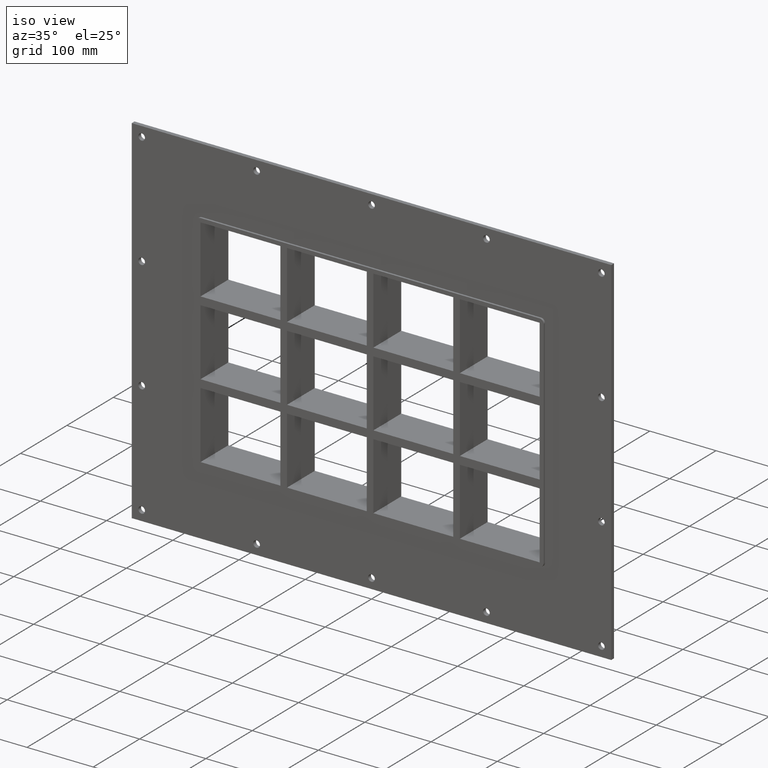
[diagram: clean part render]
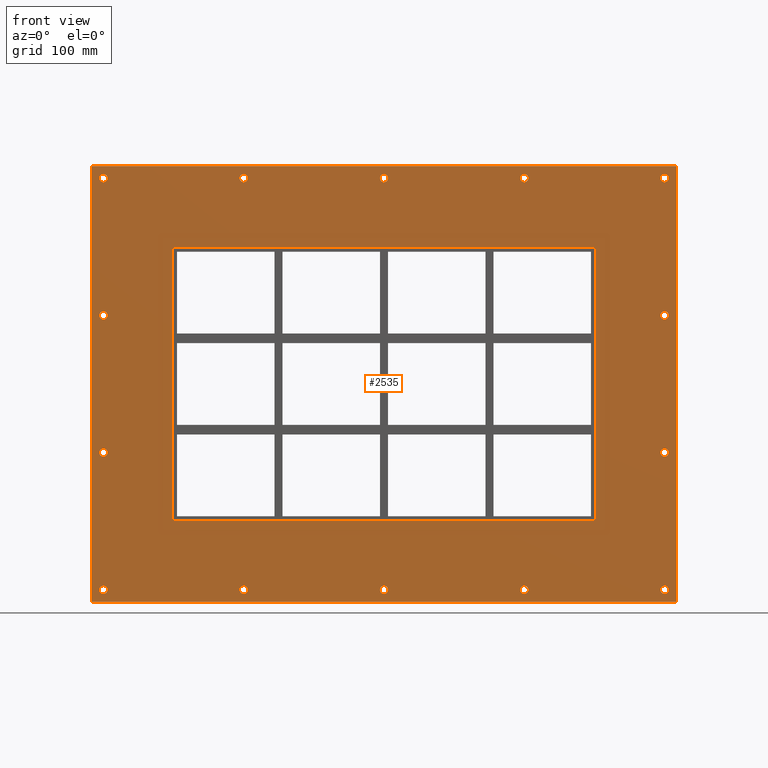
[diagram: tour spotlight — one face highlighted and labeled with its STEP entity id]
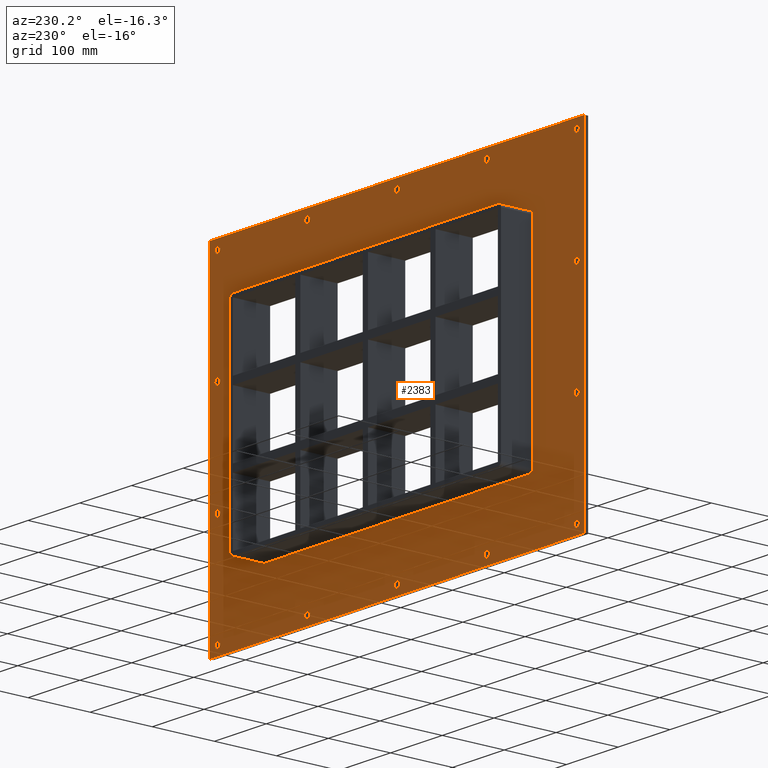
[diagram: tour spotlight — one face highlighted and labeled with its STEP entity id]
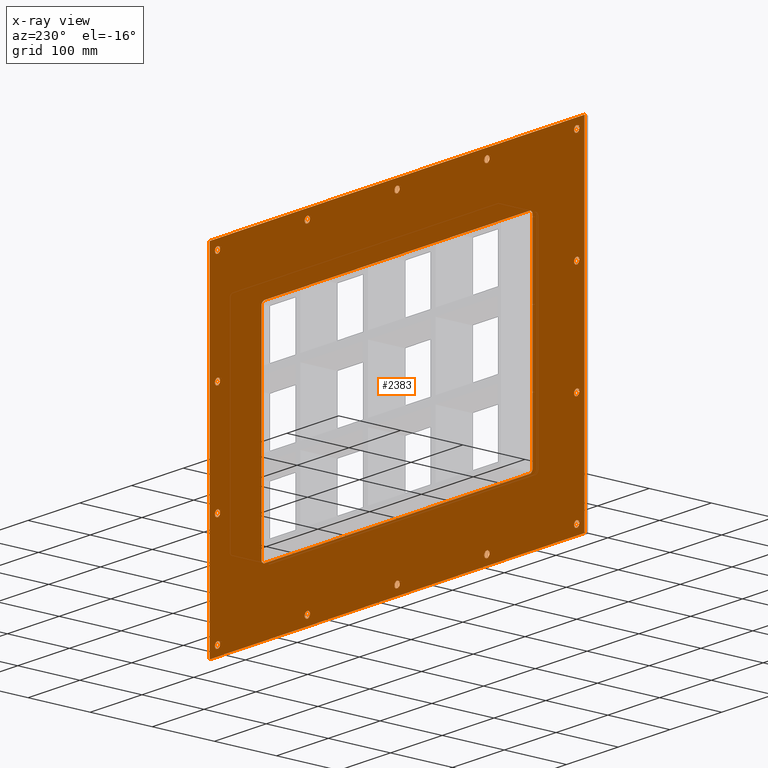
[diagram: x-ray of the same camera — body ghosted, this tour face saturated]
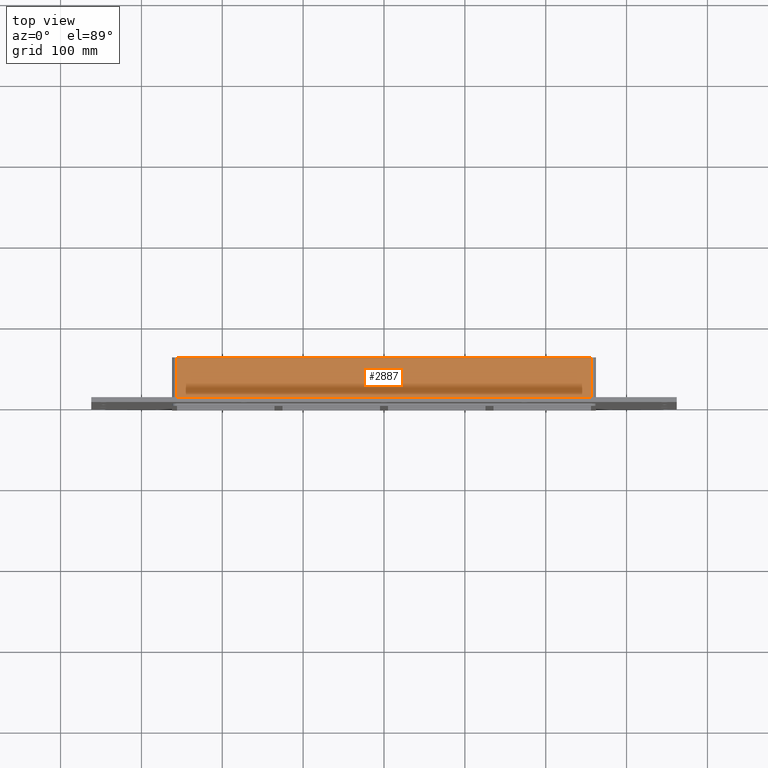
[diagram: tour spotlight — one face highlighted and labeled with its STEP entity id]
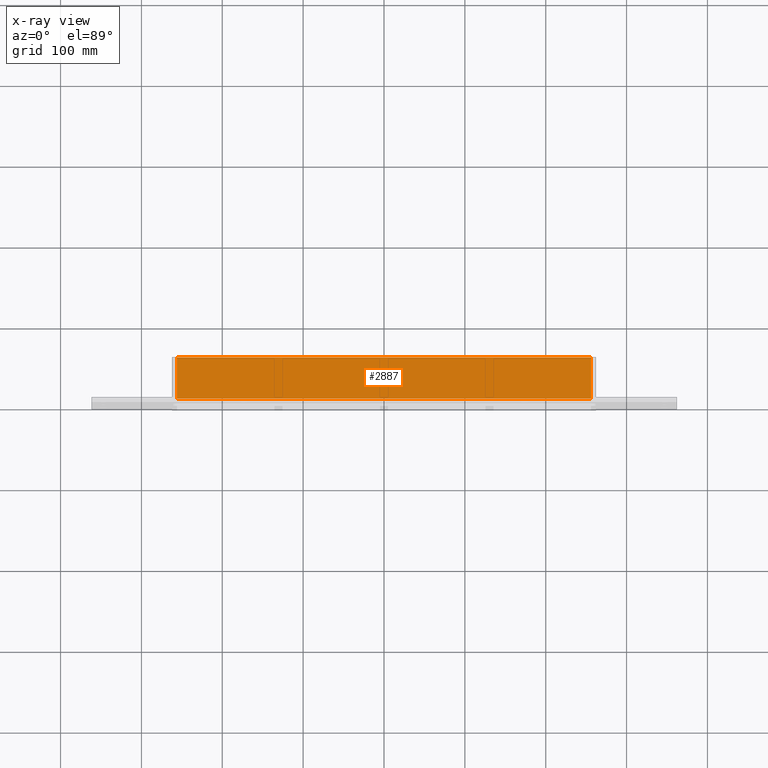
[diagram: x-ray of the same camera — body ghosted, this tour face saturated]
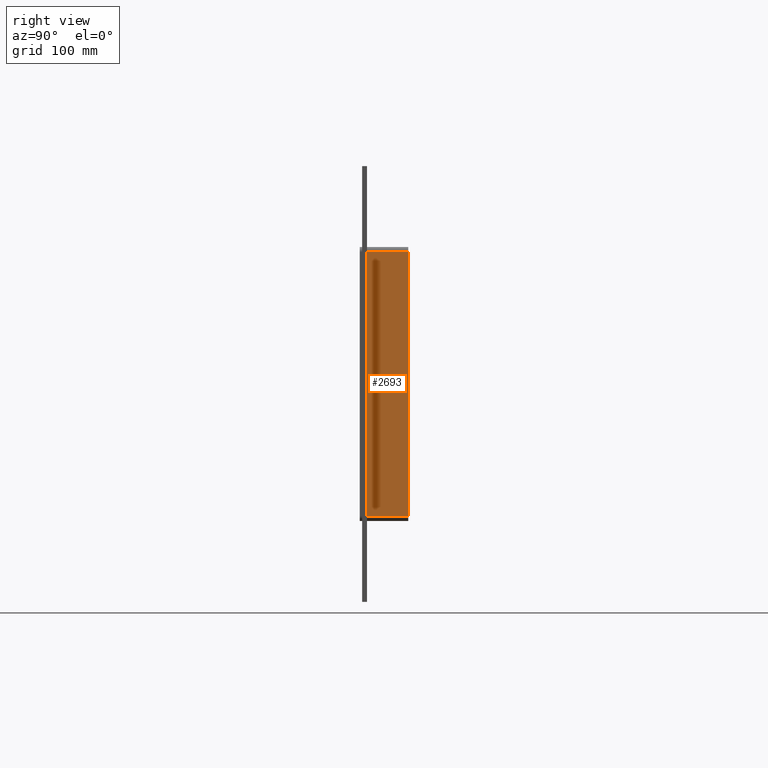
[diagram: tour spotlight — one face highlighted and labeled with its STEP entity id]
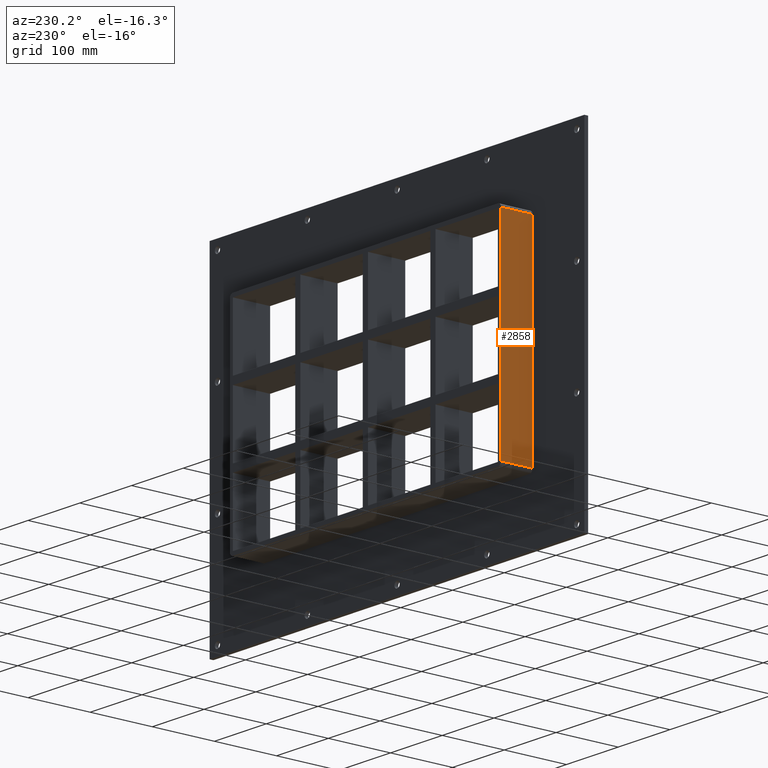
[diagram: tour spotlight — one face highlighted and labeled with its STEP entity id]
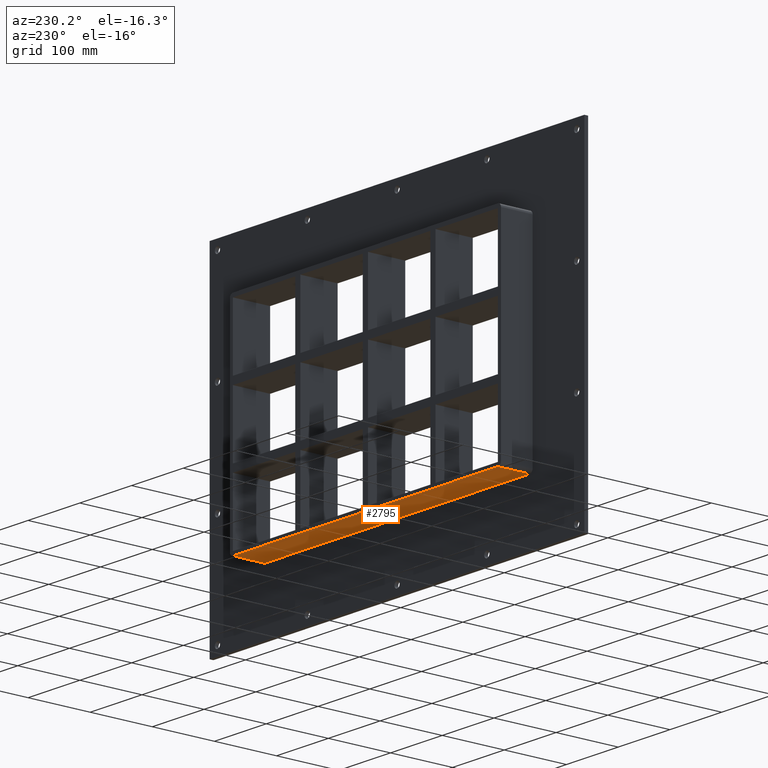
[diagram: tour spotlight — one face highlighted and labeled with its STEP entity id]
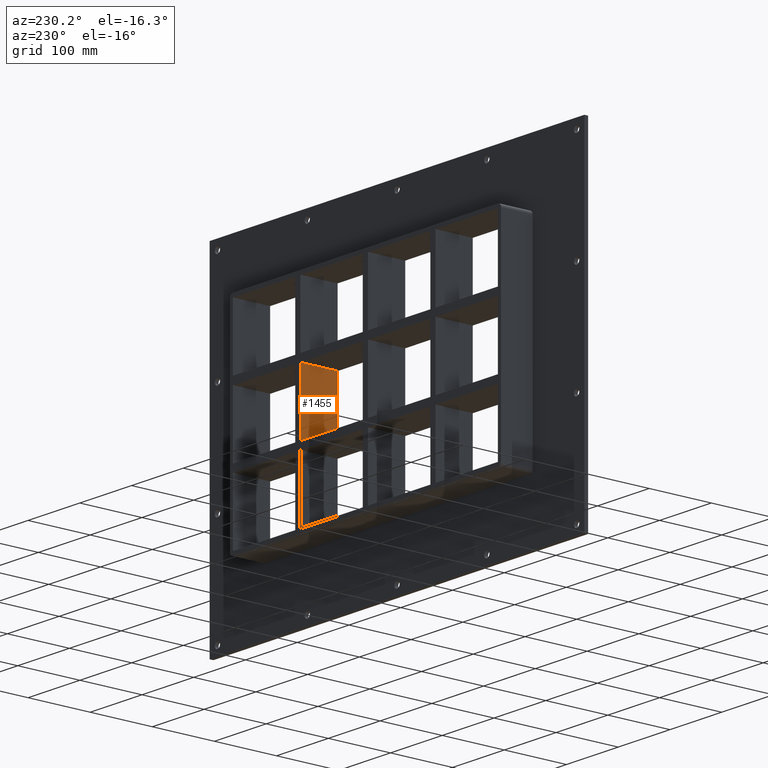
[diagram: tour spotlight — one face highlighted and labeled with its STEP entity id]
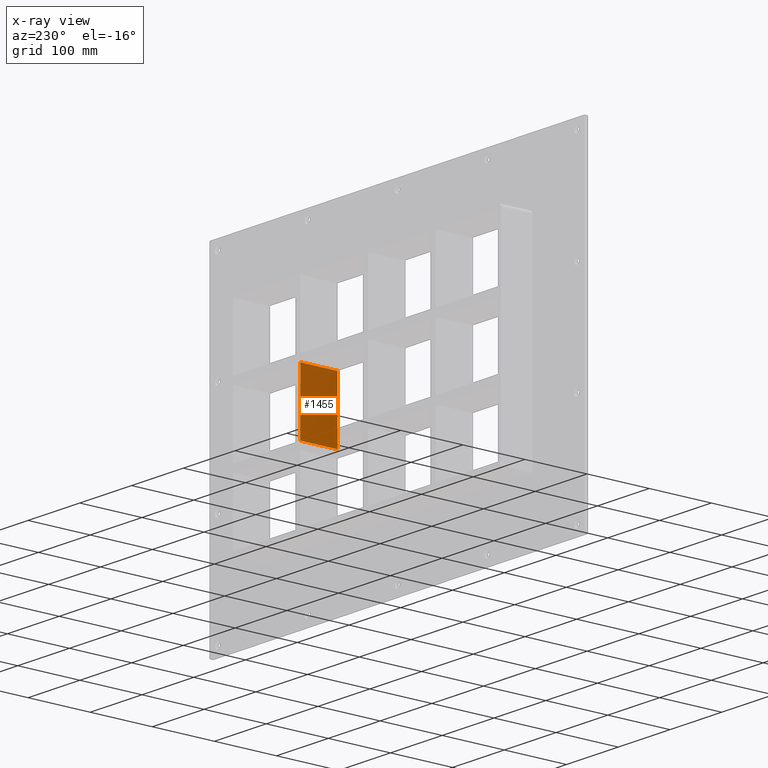
[diagram: x-ray of the same camera — body ghosted, this tour face saturated]
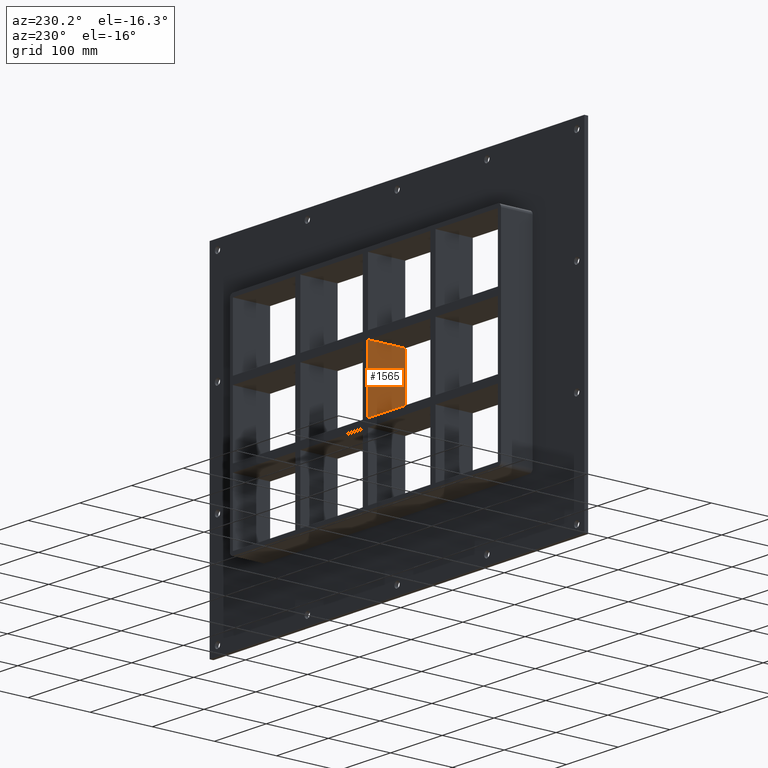
[diagram: tour spotlight — one face highlighted and labeled with its STEP entity id]
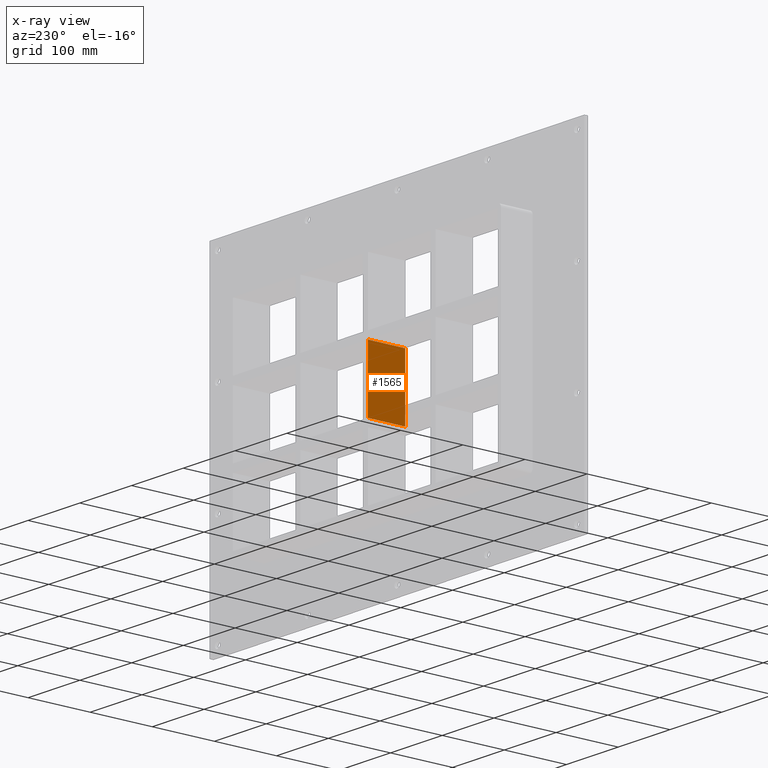
[diagram: x-ray of the same camera — body ghosted, this tour face saturated]
A machine part: a face-by-face anatomy tour. The part has 86 B-rep faces; the first image is the clean iso view, then the 8 largest visible faces are spotlighted one at a time (largest first), each with its STEP entity span.

Face 1 — front view, entity #2535. In plain terms, the highlighted planar face has unit normal (0, 1, 0).
Definition (entity closure, byte-faithful):
#84=CARTESIAN_POINT('',(-342.00000000000011,0.0,-254.49999999999991));
#85=VERTEX_POINT('',#84);
#86=CARTESIAN_POINT('',(-347.00000000000011,0.0,-254.49999999999991));
#87=DIRECTION('',(0.0,1.0,0.0));
#88=DIRECTION('',(1.0,0.0,0.0));
#89=AXIS2_PLACEMENT_3D('',#86,#87,#88);
#90=CIRCLE('',#89,5.0);
#91=EDGE_CURVE('',#85,#85,#90,.T.);
#112=CARTESIAN_POINT('',(351.99999999999994,0.0,-84.799999999999926));
#113=VERTEX_POINT('',#112);
#114=CARTESIAN_POINT('',(346.99999999999994,0.0,-84.799999999999926));
#115=DIRECTION('',(0.0,1.0,0.0));
#116=DIRECTION('',(1.0,0.0,0.0));
#117=AXIS2_PLACEMENT_3D('',#114,#115,#116);
#118=CIRCLE('',#117,5.0);
#119=EDGE_CURVE('',#113,#113,#118,.T.);
#140=CARTESIAN_POINT('',(-342.00000000000011,0.0,-84.799999999999926));
#141=VERTEX_POINT('',#140);
#142=CARTESIAN_POINT('',(-347.00000000000011,0.0,-84.799999999999926));
#143=DIRECTION('',(0.0,1.0,0.0));
#144=DIRECTION('',(1.0,0.0,0.0));
#145=AXIS2_PLACEMENT_3D('',#142,#143,#144);
#146=CIRCLE('',#145,5.0);
#147=EDGE_CURVE('',#141,#141,#146,.T.);
#168=CARTESIAN_POINT('',(351.99999999999994,0.0,84.900000000000063));
#169=VERTEX_POINT('',#168);
#170=CARTESIAN_POINT('',(346.99999999999994,0.0,84.900000000000063));
#171=DIRECTION('',(0.0,1.0,0.0));
#172=DIRECTION('',(1.0,0.0,0.0));
#173=AXIS2_PLACEMENT_3D('',#170,#171,#172);
#174=CIRCLE('',#173,5.0);
#175=EDGE_CURVE('',#169,#169,#174,.T.);
#196=CARTESIAN_POINT('',(-342.00000000000011,0.0,84.900000000000063));
#197=VERTEX_POINT('',#196);
#198=CARTESIAN_POINT('',(-347.00000000000011,0.0,84.900000000000063));
#199=DIRECTION('',(0.0,1.0,0.0));
#200=DIRECTION('',(1.0,0.0,0.0));
#201=AXIS2_PLACEMENT_3D('',#198,#199,#200);
#202=CIRCLE('',#201,5.0);
#203=EDGE_CURVE('',#197,#197,#202,.T.);
#224=CARTESIAN_POINT('',(-168.50000000000009,0.0,254.60000000000005));
#225=VERTEX_POINT('',#224);
#226=CARTESIAN_POINT('',(-173.50000000000009,0.0,254.60000000000005));
#227=DIRECTION('',(0.0,1.0,0.0));
#228=DIRECTION('',(1.0,0.0,0.0));
#229=AXIS2_PLACEMENT_3D('',#226,#227,#228);
#230=CIRCLE('',#229,5.0);
#231=EDGE_CURVE('',#225,#225,#230,.T.);
#252=CARTESIAN_POINT('',(-168.50000000000009,0.0,-254.49999999999991));
#253=VERTEX_POINT('',#252);
#254=CARTESIAN_POINT('',(-173.50000000000009,0.0,-254.49999999999991));
#255=DIRECTION('',(0.0,1.0,0.0));
#256=DIRECTION('',(1.0,0.0,0.0));
#257=AXIS2_PLACEMENT_3D('',#254,#255,#256);
#258=CIRCLE('',#257,5.0);
#259=EDGE_CURVE('',#253,#253,#258,.T.);
#280=CARTESIAN_POINT('',(4.999999999999929,0.0,254.60000000000005));
#281=VERTEX_POINT('',#280);
#282=CARTESIAN_POINT('',(-7.105427E-014,0.0,254.60000000000005));
#283=DIRECTION('',(0.0,1.0,0.0));
#284=DIRECTION('',(1.0,0.0,0.0));
#285=AXIS2_PLACEMENT_3D('',#282,#283,#284);
#286=CIRCLE('',#285,5.0);
#287=EDGE_CURVE('',#281,#281,#286,.T.);
#308=CARTESIAN_POINT('',(4.999999999999929,0.0,-254.49999999999991));
#309=VERTEX_POINT('',#308);
#310=CARTESIAN_POINT('',(-7.105427E-014,0.0,-254.49999999999991));
#311=DIRECTION('',(0.0,1.0,0.0));
#312=DIRECTION('',(1.0,0.0,0.0));
#313=AXIS2_PLACEMENT_3D('',#310,#311,#312);
#314=CIRCLE('',#313,5.0);
#315=EDGE_CURVE('',#309,#309,#314,.T.);
#336=CARTESIAN_POINT('',(178.49999999999994,0.0,254.60000000000005));
#337=VERTEX_POINT('',#336);
#338=CARTESIAN_POINT('',(173.49999999999994,0.0,254.60000000000005));
#339=DIRECTION('',(0.0,1.0,0.0));
#340=DIRECTION('',(1.0,0.0,0.0));
#341=AXIS2_PLACEMENT_3D('',#338,#339,#340);
#342=CIRCLE('',#341,5.0);
#343=EDGE_CURVE('',#337,#337,#342,.T.);
#364=CARTESIAN_POINT('',(178.49999999999994,0.0,-254.49999999999991));
#365=VERTEX_POINT('',#364);
#366=CARTESIAN_POINT('',(173.49999999999994,0.0,-254.49999999999991));
#367=DIRECTION('',(0.0,1.0,0.0));
#368=DIRECTION('',(1.0,0.0,0.0));
#369=AXIS2_PLACEMENT_3D('',#366,#367,#368);
#370=CIRCLE('',#369,5.0);
#371=EDGE_CURVE('',#365,#365,#370,.T.);
#392=CARTESIAN_POINT('',(351.99999999999994,0.0,-254.49999999999991));
#393=VERTEX_POINT('',#392);
#394=CARTESIAN_POINT('',(346.99999999999994,0.0,-254.49999999999991));
#395=DIRECTION('',(0.0,1.0,0.0));
#396=DIRECTION('',(1.0,0.0,0.0));
#397=AXIS2_PLACEMENT_3D('',#394,#395,#396);
#398=CIRCLE('',#397,5.0);
#399=EDGE_CURVE('',#393,#393,#398,.T.);
#420=CARTESIAN_POINT('',(-342.00000000000011,0.0,254.60000000000005));
#421=VERTEX_POINT('',#420);
#422=CARTESIAN_POINT('',(-347.00000000000011,0.0,254.60000000000005));
#423=DIRECTION('',(0.0,1.0,0.0));
#424=DIRECTION('',(1.0,0.0,0.0));
#425=AXIS2_PLACEMENT_3D('',#422,#423,#424);
#426=CIRCLE('',#425,5.0);
#427=EDGE_CURVE('',#421,#421,#426,.T.);
#448=CARTESIAN_POINT('',(351.99999999999994,0.0,254.60000000000005));
#449=VERTEX_POINT('',#448);
#450=CARTESIAN_POINT('',(346.99999999999994,0.0,254.60000000000005));
#451=DIRECTION('',(0.0,1.0,0.0));
#452=DIRECTION('',(1.0,0.0,0.0));
#453=AXIS2_PLACEMENT_3D('',#450,#451,#452);
#454=CIRCLE('',#453,5.0);
#455=EDGE_CURVE('',#449,#449,#454,.T.);
#2384=CARTESIAN_POINT('',(-4.050600E-014,0.0,2.108281E-014));
#2385=DIRECTION('',(0.0,1.0,0.0));
#2386=DIRECTION('',(0.0,0.0,1.0));
#2387=AXIS2_PLACEMENT_3D('',#2384,#2385,#2386);
#2388=PLANE('',#2387);
#2389=CARTESIAN_POINT('',(-362.00000000000011,0.0,269.49999999999994));
#2390=VERTEX_POINT('',#2389);
#2391=CARTESIAN_POINT('',(362.0,0.0,269.49999999999994));
#2392=VERTEX_POINT('',#2391);
#2393=CARTESIAN_POINT('',(-362.00000000000011,0.0,269.49999999999994));
#2394=DIRECTION('',(1.0,0.0,0.0));
#2395=VECTOR('',#2394,724.0);
#2396=LINE('',#2393,#2395);
#2397=EDGE_CURVE('',#2390,#2392,#2396,.T.);
#2398=ORIENTED_EDGE('',*,*,#2397,.F.);
#2399=CARTESIAN_POINT('',(-362.00000000000011,0.0,-269.49999999999994));
#2400=VERTEX_POINT('',#2399);
#2401=CARTESIAN_POINT('',(-362.00000000000011,0.0,-269.49999999999994));
#2402=DIRECTION('',(0.0,0.0,1.0));
#2403=VECTOR('',#2402,538.99999999999989);
#2404=LINE('',#2401,#2403);
#2405=EDGE_CURVE('',#2400,#2390,#2404,.T.);
#2406=ORIENTED_EDGE('',*,*,#2405,.F.);
#2407=CARTESIAN_POINT('',(362.0,0.0,-269.49999999999994));
#2408=VERTEX_POINT('',#2407);
#2409=CARTESIAN_POINT('',(362.0,0.0,-269.49999999999994));
#2410=DIRECTION('',(-1.0,0.0,0.0));
#2411=VECTOR('',#2410,724.0);
#2412=LINE('',#2409,#2411);
#2413=EDGE_CURVE('',#2408,#2400,#2412,.T.);
#2414=ORIENTED_EDGE('',*,*,#2413,.F.);
#2415=CARTESIAN_POINT('',(362.0,0.0,269.49999999999994));
#2416=DIRECTION('',(0.0,0.0,-1.0));
#2417=VECTOR('',#2416,538.99999999999989);
#2418=LINE('',#2415,#2417);
#2419=EDGE_CURVE('',#2392,#2408,#2418,.T.);
#2420=ORIENTED_EDGE('',*,*,#2419,.F.);
#2421=EDGE_LOOP('',(#2398,#2406,#2414,#2420));
#2422=FACE_OUTER_BOUND('',#2421,.T.);
#2423=ORIENTED_EDGE('',*,*,#91,.T.);
#2424=EDGE_LOOP('',(#2423));
#2425=FACE_BOUND('',#2424,.T.);
#2426=ORIENTED_EDGE('',*,*,#119,.T.);
#2427=EDGE_LOOP('',(#2426));
#2428=FACE_BOUND('',#2427,.T.);
#2429=ORIENTED_EDGE('',*,*,#147,.T.);
#2430=EDGE_LOOP('',(#2429));
#2431=FACE_BOUND('',#2430,.T.);
#2432=ORIENTED_EDGE('',*,*,#175,.T.);
#2433=EDGE_LOOP('',(#2432));
#2434=FACE_BOUND('',#2433,.T.);
#2435=ORIENTED_EDGE('',*,*,#203,.T.);
#2436=EDGE_LOOP('',(#2435));
#2437=FACE_BOUND('',#2436,.T.);
#2438=ORIENTED_EDGE('',*,*,#231,.T.);
#2439=EDGE_LOOP('',(#2438));
#2440=FACE_BOUND('',#2439,.T.);
#2441=ORIENTED_EDGE('',*,*,#259,.T.);
#2442=EDGE_LOOP('',(#2441));
#2443=FACE_BOUND('',#2442,.T.);
#2444=ORIENTED_EDGE('',*,*,#287,.T.);
#2445=EDGE_LOOP('',(#2444));
#2446=FACE_BOUND('',#2445,.T.);
#2447=ORIENTED_EDGE('',*,*,#315,.T.);
#2448=EDGE_LOOP('',(#2447));
#2449=FACE_BOUND('',#2448,.T.);
#2450=ORIENTED_EDGE('',*,*,#343,.T.);
#2451=EDGE_LOOP('',(#2450));
#2452=FACE_BOUND('',#2451,.T.);
#2453=ORIENTED_EDGE('',*,*,#371,.T.);
#2454=EDGE_LOOP('',(#2453));
#2455=FACE_BOUND('',#2454,.T.);
#2456=ORIENTED_EDGE('',*,*,#399,.T.);
#2457=EDGE_LOOP('',(#2456));
#2458=FACE_BOUND('',#2457,.T.);
#2459=ORIENTED_EDGE('',*,*,#427,.T.);
#2460=EDGE_LOOP('',(#2459));
#2461=FACE_BOUND('',#2460,.T.);
#2462=ORIENTED_EDGE('',*,*,#455,.T.);
#2463=EDGE_LOOP('',(#2462));
#2464=FACE_BOUND('',#2463,.T.);
#2465=CARTESIAN_POINT('',(-262.0,0.0,-163.5));
#2466=VERTEX_POINT('',#2465);
#2467=CARTESIAN_POINT('',(-256.0,0.0,-169.50000000000003));
#2468=VERTEX_POINT('',#2467);
#2469=CARTESIAN_POINT('',(-256.0,0.0,-163.5));
#2470=DIRECTION('',(0.0,-1.0,0.0));
#2471=DIRECTION('',(-0.707106781186548,0.0,-0.707106781186548));
#2472=AXIS2_PLACEMENT_3D('',#2469,#2470,#2471);
#2473=CIRCLE('',#2472,6.000000000000002);
#2474=EDGE_CURVE('',#2466,#2468,#2473,.T.);
#2475=ORIENTED_EDGE('',*,*,#2474,.F.);
#2476=CARTESIAN_POINT('',(-262.0,0.0,163.5));
#2477=VERTEX_POINT('',#2476);
#2478=CARTESIAN_POINT('',(-262.0,0.0,163.50000000000003));
#2479=DIRECTION('',(0.0,0.0,-1.0));
#2480=VECTOR('',#2479,327.0);
#2481=LINE('',#2478,#2480);
#2482=EDGE_CURVE('',#2477,#2466,#2481,.T.);
#2483=ORIENTED_EDGE('',*,*,#2482,.F.);
#2484=CARTESIAN_POINT('',(-256.0,0.0,169.50000000000003));
#2485=VERTEX_POINT('',#2484);
#2486=CARTESIAN_POINT('',(-256.0,0.0,163.5));
#2487=DIRECTION('',(0.0,-1.0,0.0));
#2488=DIRECTION('',(-0.707106781186548,0.0,0.707106781186548));
#2489=AXIS2_PLACEMENT_3D('',#2486,#2487,#2488);
#2490=CIRCLE('',#2489,6.000000000000002);
#2491=EDGE_CURVE('',#2485,#2477,#2490,.T.);
#2492=ORIENTED_EDGE('',*,*,#2491,.F.);
#2493=CARTESIAN_POINT('',(256.0,0.0,169.50000000000003));
#2494=VERTEX_POINT('',#2493);
#2495=CARTESIAN_POINT('',(255.99999999999997,0.0,169.50000000000003));
#2496=DIRECTION('',(-1.0,0.0,0.0));
#2497=VECTOR('',#2496,512.0);
#2498=LINE('',#2495,#2497);
#2499=EDGE_CURVE('',#2494,#2485,#2498,.T.);
#2500=ORIENTED_EDGE('',*,*,#2499,.F.);
#2501=CARTESIAN_POINT('',(262.0,0.0,163.5));
#2502=VERTEX_POINT('',#2501);
#2503=CARTESIAN_POINT('',(256.0,0.0,163.5));
#2504=DIRECTION('',(0.0,-1.0,0.0));
#2505=DIRECTION('',(0.707106781186548,0.0,0.707106781186548));
#2506=AXIS2_PLACEMENT_3D('',#2503,#2504,#2505);
#2507=CIRCLE('',#2506,6.000000000000002);
#2508=EDGE_CURVE('',#2502,#2494,#2507,.T.);
#2509=ORIENTED_EDGE('',*,*,#2508,.F.);
#2510=CARTESIAN_POINT('',(262.0,0.0,-163.5));
#2511=VERTEX_POINT('',#2510);
#2512=CARTESIAN_POINT('',(262.0,0.0,-163.5));
#2513=DIRECTION('',(0.0,0.0,1.0));
#2514=VECTOR('',#2513,327.0);
#2515=LINE('',#2512,#2514);
#2516=EDGE_CURVE('',#2511,#2502,#2515,.T.);
#2517=ORIENTED_EDGE('',*,*,#2516,.F.);
#2518=CARTESIAN_POINT('',(256.0,0.0,-169.50000000000003));
#2519=VERTEX_POINT('',#2518);
#2520=CARTESIAN_POINT('',(256.0,0.0,-163.5));
#2521=DIRECTION('',(0.0,-1.0,0.0));
#2522=DIRECTION('',(0.707106781186548,0.0,-0.707106781186548));
#2523=AXIS2_PLACEMENT_3D('',#2520,#2521,#2522);
#2524=CIRCLE('',#2523,6.000000000000002);
#2525=EDGE_CURVE('',#2519,#2511,#2524,.T.);
#2526=ORIENTED_EDGE('',*,*,#2525,.F.);
#2527=CARTESIAN_POINT('',(-256.0,0.0,-169.50000000000003));
#2528=DIRECTION('',(1.0,0.0,0.0));
#2529=VECTOR('',#2528,512.0);
#2530=LINE('',#2527,#2529);
#2531=EDGE_CURVE('',#2468,#2519,#2530,.T.);
#2532=ORIENTED_EDGE('',*,*,#2531,.F.);
#2533=EDGE_LOOP('',(#2475,#2483,#2492,#2500,#2509,#2517,#2526,#2532));
#2534=FACE_BOUND('',#2533,.T.);
#2535=ADVANCED_FACE('',(#2422,#2425,#2428,#2431,#2434,#2437,#2440,#2443,#2446,#2449,#2452,#2455,#2458,#2461,#2464,#2534),#2388,.F.);

Face 2 — auxiliary view, entity #2383. An x-ray twin of the same camera follows (body ghosted, this face saturated) — the face is partly hidden behind the body. In plain terms, the highlighted planar face has unit normal (0, 1, 0).
Definition (entity closure, byte-faithful):
#73=CARTESIAN_POINT('',(-352.00000000000011,5.999999999999943,-254.49999999999991));
#74=VERTEX_POINT('',#73);
#75=CARTESIAN_POINT('',(-347.00000000000011,5.999999999999943,-254.49999999999991));
#76=DIRECTION('',(0.0,-1.0,0.0));
#77=DIRECTION('',(1.0,0.0,0.0));
#78=AXIS2_PLACEMENT_3D('',#75,#76,#77);
#79=CIRCLE('',#78,5.0);
#80=EDGE_CURVE('',#74,#74,#79,.T.);
#101=CARTESIAN_POINT('',(341.99999999999994,5.999999999999943,-84.799999999999926));
#102=VERTEX_POINT('',#101);
#103=CARTESIAN_POINT('',(346.99999999999994,5.999999999999943,-84.799999999999926));
#104=DIRECTION('',(0.0,-1.0,0.0));
#105=DIRECTION('',(1.0,0.0,0.0));
#106=AXIS2_PLACEMENT_3D('',#103,#104,#105);
#107=CIRCLE('',#106,5.0);
#108=EDGE_CURVE('',#102,#102,#107,.T.);
#129=CARTESIAN_POINT('',(-352.00000000000011,5.999999999999943,-84.799999999999926));
#130=VERTEX_POINT('',#129);
#131=CARTESIAN_POINT('',(-347.00000000000011,5.999999999999943,-84.799999999999926));
#132=DIRECTION('',(0.0,-1.0,0.0));
#133=DIRECTION('',(1.0,0.0,0.0));
#134=AXIS2_PLACEMENT_3D('',#131,#132,#133);
#135=CIRCLE('',#134,5.0);
#136=EDGE_CURVE('',#130,#130,#135,.T.);
#157=CARTESIAN_POINT('',(341.99999999999994,5.999999999999943,84.900000000000063));
#158=VERTEX_POINT('',#157);
#159=CARTESIAN_POINT('',(346.99999999999994,5.999999999999943,84.900000000000063));
#160=DIRECTION('',(0.0,-1.0,0.0));
#161=DIRECTION('',(1.0,0.0,0.0));
#162=AXIS2_PLACEMENT_3D('',#159,#160,#161);
#163=CIRCLE('',#162,5.0);
#164=EDGE_CURVE('',#158,#158,#163,.T.);
#185=CARTESIAN_POINT('',(-352.00000000000011,5.999999999999943,84.900000000000063));
#186=VERTEX_POINT('',#185);
#187=CARTESIAN_POINT('',(-347.00000000000011,5.999999999999943,84.900000000000063));
#188=DIRECTION('',(0.0,-1.0,0.0));
#189=DIRECTION('',(1.0,0.0,0.0));
#190=AXIS2_PLACEMENT_3D('',#187,#188,#189);
#191=CIRCLE('',#190,5.0);
#192=EDGE_CURVE('',#186,#186,#191,.T.);
#213=CARTESIAN_POINT('',(-178.50000000000009,5.999999999999943,254.60000000000005));
#214=VERTEX_POINT('',#213);
#215=CARTESIAN_POINT('',(-173.50000000000009,5.999999999999943,254.60000000000005));
#216=DIRECTION('',(0.0,-1.0,0.0));
#217=DIRECTION('',(1.0,0.0,0.0));
#218=AXIS2_PLACEMENT_3D('',#215,#216,#217);
#219=CIRCLE('',#218,5.0);
#220=EDGE_CURVE('',#214,#214,#219,.T.);
#241=CARTESIAN_POINT('',(-178.50000000000009,5.999999999999943,-254.49999999999991));
#242=VERTEX_POINT('',#241);
#243=CARTESIAN_POINT('',(-173.50000000000009,5.999999999999943,-254.49999999999991));
#244=DIRECTION('',(0.0,-1.0,0.0));
#245=DIRECTION('',(1.0,0.0,0.0));
#246=AXIS2_PLACEMENT_3D('',#243,#244,#245);
#247=CIRCLE('',#246,5.0);
#248=EDGE_CURVE('',#242,#242,#247,.T.);
#269=CARTESIAN_POINT('',(-5.000000000000071,5.999999999999943,254.60000000000005));
#270=VERTEX_POINT('',#269);
#271=CARTESIAN_POINT('',(-7.105427E-014,5.999999999999943,254.60000000000005));
#272=DIRECTION('',(0.0,-1.0,0.0));
#273=DIRECTION('',(1.0,0.0,0.0));
#274=AXIS2_PLACEMENT_3D('',#271,#272,#273);
#275=CIRCLE('',#274,5.0);
#276=EDGE_CURVE('',#270,#270,#275,.T.);
#297=CARTESIAN_POINT('',(-5.000000000000071,5.999999999999943,-254.49999999999991));
#298=VERTEX_POINT('',#297);
#299=CARTESIAN_POINT('',(-7.105427E-014,5.999999999999943,-254.49999999999991));
#300=DIRECTION('',(0.0,-1.0,0.0));
#301=DIRECTION('',(1.0,0.0,0.0));
#302=AXIS2_PLACEMENT_3D('',#299,#300,#301);
#303=CIRCLE('',#302,5.0);
#304=EDGE_CURVE('',#298,#298,#303,.T.);
#325=CARTESIAN_POINT('',(168.49999999999994,5.999999999999943,254.60000000000005));
#326=VERTEX_POINT('',#325);
#327=CARTESIAN_POINT('',(173.49999999999994,5.999999999999943,254.60000000000005));
#328=DIRECTION('',(0.0,-1.0,0.0));
#329=DIRECTION('',(1.0,0.0,0.0));
#330=AXIS2_PLACEMENT_3D('',#327,#328,#329);
#331=CIRCLE('',#330,5.0);
#332=EDGE_CURVE('',#326,#326,#331,.T.);
#353=CARTESIAN_POINT('',(168.49999999999994,5.999999999999943,-254.49999999999991));
#354=VERTEX_POINT('',#353);
#355=CARTESIAN_POINT('',(173.49999999999994,5.999999999999943,-254.49999999999991));
#356=DIRECTION('',(0.0,-1.0,0.0));
#357=DIRECTION('',(1.0,0.0,0.0));
#358=AXIS2_PLACEMENT_3D('',#355,#356,#357);
#359=CIRCLE('',#358,5.0);
#360=EDGE_CURVE('',#354,#354,#359,.T.);
#381=CARTESIAN_POINT('',(341.99999999999994,5.999999999999943,-254.49999999999991));
#382=VERTEX_POINT('',#381);
#383=CARTESIAN_POINT('',(346.99999999999994,5.999999999999943,-254.49999999999991));
#384=DIRECTION('',(0.0,-1.0,0.0));
#385=DIRECTION('',(1.0,0.0,0.0));
#386=AXIS2_PLACEMENT_3D('',#383,#384,#385);
#387=CIRCLE('',#386,5.0);
#388=EDGE_CURVE('',#382,#382,#387,.T.);
#409=CARTESIAN_POINT('',(-352.00000000000011,5.999999999999943,254.60000000000005));
#410=VERTEX_POINT('',#409);
#411=CARTESIAN_POINT('',(-347.00000000000011,5.999999999999943,254.60000000000005));
#412=DIRECTION('',(0.0,-1.0,0.0));
#413=DIRECTION('',(1.0,0.0,0.0));
#414=AXIS2_PLACEMENT_3D('',#411,#412,#413);
#415=CIRCLE('',#414,5.0);
#416=EDGE_CURVE('',#410,#410,#415,.T.);
#437=CARTESIAN_POINT('',(341.99999999999994,5.999999999999943,254.60000000000005));
#438=VERTEX_POINT('',#437);
#439=CARTESIAN_POINT('',(346.99999999999994,5.999999999999943,254.60000000000005));
#440=DIRECTION('',(0.0,-1.0,0.0));
#441=DIRECTION('',(1.0,0.0,0.0));
#442=AXIS2_PLACEMENT_3D('',#439,#440,#441);
#443=CIRCLE('',#442,5.0);
#444=EDGE_CURVE('',#438,#438,#443,.T.);
#2232=CARTESIAN_POINT('',(-4.050600E-014,6.000000000000001,2.108281E-014));
#2233=DIRECTION('',(0.0,1.0,0.0));
#2234=DIRECTION('',(0.0,0.0,1.0));
#2235=AXIS2_PLACEMENT_3D('',#2232,#2233,#2234);
#2236=PLANE('',#2235);
#2237=CARTESIAN_POINT('',(-362.00000000000011,6.000000000000001,269.49999999999994));
#2238=VERTEX_POINT('',#2237);
#2239=CARTESIAN_POINT('',(361.99999999999994,6.000000000000001,269.49999999999994));
#2240=VERTEX_POINT('',#2239);
#2241=CARTESIAN_POINT('',(-362.00000000000011,6.000000000000001,269.49999999999994));
#2242=DIRECTION('',(1.0,0.0,0.0));
#2243=VECTOR('',#2242,724.0);
#2244=LINE('',#2241,#2243);
#2245=EDGE_CURVE('',#2238,#2240,#2244,.T.);
#2246=ORIENTED_EDGE('',*,*,#2245,.T.);
#2247=CARTESIAN_POINT('',(361.99999999999994,6.000000000000001,-269.49999999999994));
#2248=VERTEX_POINT('',#2247);
#2249=CARTESIAN_POINT('',(362.0,6.000000000000001,269.49999999999994));
#2250=DIRECTION('',(0.0,0.0,-1.0));
#2251=VECTOR('',#2250,538.99999999999989);
#2252=LINE('',#2249,#2251);
#2253=EDGE_CURVE('',#2240,#2248,#2252,.T.);
#2254=ORIENTED_EDGE('',*,*,#2253,.T.);
#2255=CARTESIAN_POINT('',(-362.00000000000011,6.000000000000001,-269.49999999999994));
#2256=VERTEX_POINT('',#2255);
#2257=CARTESIAN_POINT('',(362.0,6.000000000000001,-269.49999999999994));
#2258=DIRECTION('',(-1.0,0.0,0.0));
#2259=VECTOR('',#2258,724.0);
#2260=LINE('',#2257,#2259);
#2261=EDGE_CURVE('',#2248,#2256,#2260,.T.);
#2262=ORIENTED_EDGE('',*,*,#2261,.T.);
#2263=CARTESIAN_POINT('',(-362.00000000000011,6.000000000000001,-269.49999999999994));
#2264=DIRECTION('',(0.0,0.0,1.0));
#2265=VECTOR('',#2264,538.99999999999989);
#2266=LINE('',#2263,#2265);
#2267=EDGE_CURVE('',#2256,#2238,#2266,.T.);
#2268=ORIENTED_EDGE('',*,*,#2267,.T.);
#2269=EDGE_LOOP('',(#2246,#2254,#2262,#2268));
#2270=FACE_OUTER_BOUND('',#2269,.T.);
#2271=ORIENTED_EDGE('',*,*,#80,.T.);
#2272=EDGE_LOOP('',(#2271));
#2273=FACE_BOUND('',#2272,.T.);
#2274=ORIENTED_EDGE('',*,*,#108,.T.);
#2275=EDGE_LOOP('',(#2274));
#2276=FACE_BOUND('',#2275,.T.);
#2277=ORIENTED_EDGE('',*,*,#136,.T.);
#2278=EDGE_LOOP('',(#2277));
#2279=FACE_BOUND('',#2278,.T.);
#2280=ORIENTED_EDGE('',*,*,#164,.T.);
#2281=EDGE_LOOP('',(#2280));
#2282=FACE_BOUND('',#2281,.T.);
#2283=ORIENTED_EDGE('',*,*,#192,.T.);
#2284=EDGE_LOOP('',(#2283));
#2285=FACE_BOUND('',#2284,.T.);
#2286=ORIENTED_EDGE('',*,*,#220,.T.);
#2287=EDGE_LOOP('',(#2286));
#2288=FACE_BOUND('',#2287,.T.);
#2289=ORIENTED_EDGE('',*,*,#248,.T.);
#2290=EDGE_LOOP('',(#2289));
#2291=FACE_BOUND('',#2290,.T.);
#2292=ORIENTED_EDGE('',*,*,#276,.T.);
#2293=EDGE_LOOP('',(#2292));
#2294=FACE_BOUND('',#2293,.T.);
#2295=ORIENTED_EDGE('',*,*,#304,.T.);
#2296=EDGE_LOOP('',(#2295));
#2297=FACE_BOUND('',#2296,.T.);
#2298=ORIENTED_EDGE('',*,*,#332,.T.);
#2299=EDGE_LOOP('',(#2298));
#2300=FACE_BOUND('',#2299,.T.);
#2301=ORIENTED_EDGE('',*,*,#360,.T.);
#2302=EDGE_LOOP('',(#2301));
#2303=FACE_BOUND('',#2302,.T.);
#2304=ORIENTED_EDGE('',*,*,#388,.T.);
#2305=EDGE_LOOP('',(#2304));
#2306=FACE_BOUND('',#2305,.T.);
#2307=ORIENTED_EDGE('',*,*,#416,.T.);
#2308=EDGE_LOOP('',(#2307));
#2309=FACE_BOUND('',#2308,.T.);
#2310=ORIENTED_EDGE('',*,*,#444,.T.);
#2311=EDGE_LOOP('',(#2310));
#2312=FACE_BOUND('',#2311,.T.);
#2313=CARTESIAN_POINT('',(-256.0,6.000000000000001,-169.50000000000003));
#2314=VERTEX_POINT('',#2313);
#2315=CARTESIAN_POINT('',(-262.0,6.000000000000001,-163.5));
#2316=VERTEX_POINT('',#2315);
#2317=CARTESIAN_POINT('',(-256.0,6.000000000000001,-163.5));
#2318=DIRECTION('',(0.0,1.0,0.0));
#2319=DIRECTION('',(-0.707106781186548,0.0,-0.707106781186548));
#2320=AXIS2_PLACEMENT_3D('',#2317,#2318,#2319);
#2321=CIRCLE('',#2320,6.000000000000002);
#2322=EDGE_CURVE('',#2314,#2316,#2321,.T.);
#2323=ORIENTED_EDGE('',*,*,#2322,.F.);
#2324=CARTESIAN_POINT('',(256.0,6.000000000000001,-169.50000000000003));
#2325=VERTEX_POINT('',#2324);
#2326=CARTESIAN_POINT('',(256.0,6.000000000000001,-169.50000000000003));
#2327=DIRECTION('',(-1.0,0.0,0.0));
#2328=VECTOR('',#2327,512.0);
#2329=LINE('',#2326,#2328);
#2330=EDGE_CURVE('',#2325,#2314,#2329,.T.);
#2331=ORIENTED_EDGE('',*,*,#2330,.F.);
#2332=CARTESIAN_POINT('',(262.0,6.000000000000001,-163.5));
#2333=VERTEX_POINT('',#2332);
#2334=CARTESIAN_POINT('',(256.0,6.000000000000001,-163.5));
#2335=DIRECTION('',(0.0,1.0,0.0));
#2336=DIRECTION('',(0.707106781186548,0.0,-0.707106781186548));
#2337=AXIS2_PLACEMENT_3D('',#2334,#2335,#2336);
#2338=CIRCLE('',#2337,6.000000000000002);
#2339=EDGE_CURVE('',#2333,#2325,#2338,.T.);
#2340=ORIENTED_EDGE('',*,*,#2339,.F.);
#2341=CARTESIAN_POINT('',(262.0,6.000000000000001,163.5));
#2342=VERTEX_POINT('',#2341);
#2343=CARTESIAN_POINT('',(262.0,6.000000000000001,163.5));
#2344=DIRECTION('',(0.0,0.0,-1.0));
#2345=VECTOR('',#2344,327.0);
#2346=LINE('',#2343,#2345);
#2347=EDGE_CURVE('',#2342,#2333,#2346,.T.);
#2348=ORIENTED_EDGE('',*,*,#2347,.F.);
#2349=CARTESIAN_POINT('',(256.0,6.000000000000001,169.50000000000003));
#2350=VERTEX_POINT('',#2349);
#2351=CARTESIAN_POINT('',(256.0,6.000000000000001,163.5));
#2352=DIRECTION('',(0.0,1.0,0.0));
#2353=DIRECTION('',(0.707106781186548,0.0,0.707106781186548));
#2354=AXIS2_PLACEMENT_3D('',#2351,#2352,#2353);
#2355=CIRCLE('',#2354,6.000000000000002);
#2356=EDGE_CURVE('',#2350,#2342,#2355,.T.);
#2357=ORIENTED_EDGE('',*,*,#2356,.F.);
#2358=CARTESIAN_POINT('',(-256.0,6.000000000000001,169.50000000000003));
#2359=VERTEX_POINT('',#2358);
#2360=CARTESIAN_POINT('',(-256.0,6.000000000000001,169.50000000000003));
#2361=DIRECTION('',(1.0,0.0,0.0));
#2362=VECTOR('',#2361,512.0);
#2363=LINE('',#2360,#2362);
#2364=EDGE_CURVE('',#2359,#2350,#2363,.T.);
#2365=ORIENTED_EDGE('',*,*,#2364,.F.);
#2366=CARTESIAN_POINT('',(-262.0,6.000000000000001,163.5));
#2367=VERTEX_POINT('',#2366);
#2368=CARTESIAN_POINT('',(-256.0,6.000000000000001,163.5));
#2369=DIRECTION('',(0.0,1.0,0.0));
#2370=DIRECTION('',(-0.707106781186548,0.0,0.707106781186548));
#2371=AXIS2_PLACEMENT_3D('',#2368,#2369,#2370);
#2372=CIRCLE('',#2371,6.000000000000002);
#2373=EDGE_CURVE('',#2367,#2359,#2372,.T.);
#2374=ORIENTED_EDGE('',*,*,#2373,.F.);
#2375=CARTESIAN_POINT('',(-262.0,6.000000000000001,-163.5));
#2376=DIRECTION('',(0.0,0.0,1.0));
#2377=VECTOR('',#2376,327.0);
#2378=LINE('',#2375,#2377);
#2379=EDGE_CURVE('',#2316,#2367,#2378,.T.);
#2380=ORIENTED_EDGE('',*,*,#2379,.F.);
#2381=EDGE_LOOP('',(#2323,#2331,#2340,#2348,#2357,#2365,#2374,#2380));
#2382=FACE_BOUND('',#2381,.T.);
#2383=ADVANCED_FACE('',(#2270,#2273,#2276,#2279,#2282,#2285,#2288,#2291,#2294,#2297,#2300,#2303,#2306,#2309,#2312,#2382),#2236,.T.);

Face 3 — top view, entity #2887. An x-ray twin of the same camera follows (body ghosted, this face saturated) — the face is partly hidden behind the body. In plain terms, the highlighted planar face has unit normal (0, 0, 1).
Definition (entity closure, byte-faithful):
#1131=CARTESIAN_POINT('',(-256.0,57.0,169.50000000000003));
#1132=VERTEX_POINT('',#1131);
#1140=CARTESIAN_POINT('',(256.0,57.0,169.50000000000003));
#1141=VERTEX_POINT('',#1140);
#1142=CARTESIAN_POINT('',(-256.0,57.0,169.50000000000003));
#1143=DIRECTION('',(1.0,0.0,0.0));
#1144=VECTOR('',#1143,512.0);
#1145=LINE('',#1142,#1144);
#1146=EDGE_CURVE('',#1132,#1141,#1145,.T.);
#2349=CARTESIAN_POINT('',(256.0,6.000000000000001,169.50000000000003));
#2350=VERTEX_POINT('',#2349);
#2358=CARTESIAN_POINT('',(-256.0,6.000000000000001,169.50000000000003));
#2359=VERTEX_POINT('',#2358);
#2360=CARTESIAN_POINT('',(-256.0,6.000000000000001,169.50000000000003));
#2361=DIRECTION('',(1.0,0.0,0.0));
#2362=VECTOR('',#2361,512.0);
#2363=LINE('',#2360,#2362);
#2364=EDGE_CURVE('',#2359,#2350,#2363,.T.);
#2651=CARTESIAN_POINT('',(256.0,57.0,169.50000000000003));
#2652=DIRECTION('',(0.0,-1.0,0.0));
#2653=VECTOR('',#2652,51.0);
#2654=LINE('',#2651,#2653);
#2655=EDGE_CURVE('',#1141,#2350,#2654,.T.);
#2865=CARTESIAN_POINT('',(-256.0,6.000000000000001,169.50000000000003));
#2866=DIRECTION('',(0.0,1.0,0.0));
#2867=VECTOR('',#2866,51.0);
#2868=LINE('',#2865,#2867);
#2869=EDGE_CURVE('',#2359,#1132,#2868,.T.);
#2876=CARTESIAN_POINT('',(-262.0,0.0,169.50000000000003));
#2877=DIRECTION('',(0.0,0.0,1.0));
#2878=DIRECTION('',(1.0,0.0,0.0));
#2879=AXIS2_PLACEMENT_3D('',#2876,#2877,#2878);
#2880=PLANE('',#2879);
#2881=ORIENTED_EDGE('',*,*,#2364,.T.);
#2882=ORIENTED_EDGE('',*,*,#2655,.F.);
#2883=ORIENTED_EDGE('',*,*,#1146,.F.);
#2884=ORIENTED_EDGE('',*,*,#2869,.F.);
#2885=EDGE_LOOP('',(#2881,#2882,#2883,#2884));
#2886=FACE_OUTER_BOUND('',#2885,.T.);
#2887=ADVANCED_FACE('',(#2886),#2880,.T.);

Face 4 — right view, entity #2693. In plain terms, the highlighted planar face has unit normal (1, 0, 0).
Definition (entity closure, byte-faithful):
#1097=CARTESIAN_POINT('',(262.0,57.0,-163.5));
#1098=VERTEX_POINT('',#1097);
#1148=CARTESIAN_POINT('',(262.0,57.0,163.5));
#1149=VERTEX_POINT('',#1148);
#1157=CARTESIAN_POINT('',(262.0,57.0,163.5));
#1158=DIRECTION('',(0.0,0.0,-1.0));
#1159=VECTOR('',#1158,327.0);
#1160=LINE('',#1157,#1159);
#1161=EDGE_CURVE('',#1149,#1098,#1160,.T.);
#2332=CARTESIAN_POINT('',(262.0,6.000000000000001,-163.5));
#2333=VERTEX_POINT('',#2332);
#2341=CARTESIAN_POINT('',(262.0,6.000000000000001,163.5));
#2342=VERTEX_POINT('',#2341);
#2343=CARTESIAN_POINT('',(262.0,6.000000000000001,163.5));
#2344=DIRECTION('',(0.0,0.0,-1.0));
#2345=VECTOR('',#2344,327.0);
#2346=LINE('',#2343,#2345);
#2347=EDGE_CURVE('',#2342,#2333,#2346,.T.);
#2644=CARTESIAN_POINT('',(262.0,6.000000000000001,163.5));
#2645=DIRECTION('',(0.0,1.0,0.0));
#2646=VECTOR('',#2645,51.0);
#2647=LINE('',#2644,#2646);
#2648=EDGE_CURVE('',#2342,#1149,#2647,.T.);
#2677=CARTESIAN_POINT('',(262.0,0.0,169.50000000000003));
#2678=DIRECTION('',(1.0,0.0,0.0));
#2679=DIRECTION('',(0.0,0.0,-1.0));
#2680=AXIS2_PLACEMENT_3D('',#2677,#2678,#2679);
#2681=PLANE('',#2680);
#2682=ORIENTED_EDGE('',*,*,#2347,.T.);
#2683=CARTESIAN_POINT('',(262.0,57.0,-163.5));
#2684=DIRECTION('',(0.0,-1.0,0.0));
#2685=VECTOR('',#2684,51.0);
#2686=LINE('',#2683,#2685);
#2687=EDGE_CURVE('',#1098,#2333,#2686,.T.);
#2688=ORIENTED_EDGE('',*,*,#2687,.F.);
#2689=ORIENTED_EDGE('',*,*,#1161,.F.);
#2690=ORIENTED_EDGE('',*,*,#2648,.F.);
#2691=EDGE_LOOP('',(#2682,#2688,#2689,#2690));
#2692=FACE_OUTER_BOUND('',#2691,.T.);
#2693=ADVANCED_FACE('',(#2692),#2681,.T.);

Face 5 — auxiliary view, entity #2858. In plain terms, the highlighted planar face has unit normal (-1, 0, 0).
Definition (entity closure, byte-faithful):
#1114=CARTESIAN_POINT('',(-262.0,57.0,-163.5));
#1115=VERTEX_POINT('',#1114);
#1123=CARTESIAN_POINT('',(-262.0,57.0,163.5));
#1124=VERTEX_POINT('',#1123);
#1125=CARTESIAN_POINT('',(-262.0,57.0,-163.5));
#1126=DIRECTION('',(0.0,0.0,1.0));
#1127=VECTOR('',#1126,327.0);
#1128=LINE('',#1125,#1127);
#1129=EDGE_CURVE('',#1115,#1124,#1128,.T.);
#2315=CARTESIAN_POINT('',(-262.0,6.000000000000001,-163.5));
#2316=VERTEX_POINT('',#2315);
#2366=CARTESIAN_POINT('',(-262.0,6.000000000000001,163.5));
#2367=VERTEX_POINT('',#2366);
#2375=CARTESIAN_POINT('',(-262.0,6.000000000000001,-163.5));
#2376=DIRECTION('',(0.0,0.0,1.0));
#2377=VECTOR('',#2376,327.0);
#2378=LINE('',#2375,#2377);
#2379=EDGE_CURVE('',#2316,#2367,#2378,.T.);
#2831=CARTESIAN_POINT('',(-262.0,6.000000000000001,-163.5));
#2832=DIRECTION('',(0.0,1.0,0.0));
#2833=VECTOR('',#2832,51.0);
#2834=LINE('',#2831,#2833);
#2835=EDGE_CURVE('',#2316,#1115,#2834,.T.);
#2842=CARTESIAN_POINT('',(-262.0,0.0,-169.50000000000003));
#2843=DIRECTION('',(-1.0,0.0,0.0));
#2844=DIRECTION('',(0.0,0.0,1.0));
#2845=AXIS2_PLACEMENT_3D('',#2842,#2843,#2844);
#2846=PLANE('',#2845);
#2847=ORIENTED_EDGE('',*,*,#2379,.T.);
#2848=CARTESIAN_POINT('',(-262.0,57.0,163.5));
#2849=DIRECTION('',(0.0,-1.0,0.0));
#2850=VECTOR('',#2849,51.0);
#2851=LINE('',#2848,#2850);
#2852=EDGE_CURVE('',#1124,#2367,#2851,.T.);
#2853=ORIENTED_EDGE('',*,*,#2852,.F.);
#2854=ORIENTED_EDGE('',*,*,#1129,.F.);
#2855=ORIENTED_EDGE('',*,*,#2835,.F.);
#2856=EDGE_LOOP('',(#2847,#2853,#2854,#2855));
#2857=FACE_OUTER_BOUND('',#2856,.T.);
#2858=ADVANCED_FACE('',(#2857),#2846,.T.);

Face 6 — auxiliary view, entity #2795. In plain terms, the highlighted planar face has unit normal (0, 0, -1).
Definition (entity closure, byte-faithful):
#1095=CARTESIAN_POINT('',(256.0,57.0,-169.50000000000003));
#1096=VERTEX_POINT('',#1095);
#1106=CARTESIAN_POINT('',(-256.0,57.0,-169.50000000000003));
#1107=VERTEX_POINT('',#1106);
#1108=CARTESIAN_POINT('',(256.0,57.0,-169.50000000000003));
#1109=DIRECTION('',(-1.0,0.0,0.0));
#1110=VECTOR('',#1109,512.0);
#1111=LINE('',#1108,#1110);
#1112=EDGE_CURVE('',#1096,#1107,#1111,.T.);
#2313=CARTESIAN_POINT('',(-256.0,6.000000000000001,-169.50000000000003));
#2314=VERTEX_POINT('',#2313);
#2324=CARTESIAN_POINT('',(256.0,6.000000000000001,-169.50000000000003));
#2325=VERTEX_POINT('',#2324);
#2326=CARTESIAN_POINT('',(256.0,6.000000000000001,-169.50000000000003));
#2327=DIRECTION('',(-1.0,0.0,0.0));
#2328=VECTOR('',#2327,512.0);
#2329=LINE('',#2326,#2328);
#2330=EDGE_CURVE('',#2325,#2314,#2329,.T.);
#2734=CARTESIAN_POINT('',(256.0,6.000000000000001,-169.50000000000003));
#2735=DIRECTION('',(0.0,1.0,0.0));
#2736=VECTOR('',#2735,51.0);
#2737=LINE('',#2734,#2736);
#2738=EDGE_CURVE('',#2325,#1096,#2737,.T.);
#2779=CARTESIAN_POINT('',(262.0,0.0,-169.50000000000003));
#2780=DIRECTION('',(0.0,0.0,-1.0));
#2781=DIRECTION('',(-1.0,0.0,0.0));
#2782=AXIS2_PLACEMENT_3D('',#2779,#2780,#2781);
#2783=PLANE('',#2782);
#2784=ORIENTED_EDGE('',*,*,#2330,.T.);
#2785=CARTESIAN_POINT('',(-256.0,57.0,-169.50000000000003));
#2786=DIRECTION('',(0.0,-1.0,0.0));
#2787=VECTOR('',#2786,51.0);
#2788=LINE('',#2785,#2787);
#2789=EDGE_CURVE('',#1107,#2314,#2788,.T.);
#2790=ORIENTED_EDGE('',*,*,#2789,.F.);
#2791=ORIENTED_EDGE('',*,*,#1112,.F.);
#2792=ORIENTED_EDGE('',*,*,#2738,.F.);
#2793=EDGE_LOOP('',(#2784,#2790,#2791,#2792));
#2794=FACE_OUTER_BOUND('',#2793,.T.);
#2795=ADVANCED_FACE('',(#2794),#2783,.T.);

Face 7 — auxiliary view, entity #1455. An x-ray twin of the same camera follows (body ghosted, this face saturated) — the face is partly hidden behind the body. In plain terms, the highlighted planar face has unit normal (-1, 0, 0).
Definition (entity closure, byte-faithful):
#585=CARTESIAN_POINT('',(125.49999999999866,-3.0,50.499999999990692));
#586=VERTEX_POINT('',#585);
#587=CARTESIAN_POINT('',(125.49999999999866,57.0,50.499999999990692));
#588=VERTEX_POINT('',#587);
#589=CARTESIAN_POINT('',(125.49999999999866,-3.0,50.499999999990678));
#590=DIRECTION('',(0.0,1.0,0.0));
#591=VECTOR('',#590,60.0);
#592=LINE('',#589,#591);
#593=EDGE_CURVE('',#586,#588,#592,.T.);
#1243=CARTESIAN_POINT('',(125.49999999999868,57.0,-50.500000000000114));
#1244=VERTEX_POINT('',#1243);
#1251=CARTESIAN_POINT('',(125.49999999999868,57.0,-50.500000000000114));
#1252=DIRECTION('',(0.0,0.0,1.0));
#1253=VECTOR('',#1252,100.99999999999079);
#1254=LINE('',#1251,#1253);
#1255=EDGE_CURVE('',#1244,#588,#1254,.T.);
#1432=CARTESIAN_POINT('',(125.49999999999869,-3.0,-163.50000000000006));
#1433=DIRECTION('',(-1.0,0.0,0.0));
#1434=DIRECTION('',(0.0,0.0,1.0));
#1435=AXIS2_PLACEMENT_3D('',#1432,#1433,#1434);
#1436=PLANE('',#1435);
#1437=ORIENTED_EDGE('',*,*,#593,.T.);
#1438=ORIENTED_EDGE('',*,*,#1255,.F.);
#1439=CARTESIAN_POINT('',(125.49999999999868,-3.0,-50.500000000000114));
#1440=VERTEX_POINT('',#1439);
#1441=CARTESIAN_POINT('',(125.49999999999868,-3.0,-50.500000000000114));
#1442=DIRECTION('',(0.0,1.0,0.0));
#1443=VECTOR('',#1442,60.0);
#1444=LINE('',#1441,#1443);
#1445=EDGE_CURVE('',#1440,#1244,#1444,.T.);
#1446=ORIENTED_EDGE('',*,*,#1445,.F.);
#1447=CARTESIAN_POINT('',(125.49999999999868,-3.0,-50.500000000000114));
#1448=DIRECTION('',(0.0,0.0,1.0));
#1449=VECTOR('',#1448,100.99999999999079);
#1450=LINE('',#1447,#1449);
#1451=EDGE_CURVE('',#1440,#586,#1450,.T.);
#1452=ORIENTED_EDGE('',*,*,#1451,.T.);
#1453=EDGE_LOOP('',(#1437,#1438,#1446,#1452));
#1454=FACE_OUTER_BOUND('',#1453,.T.);
#1455=ADVANCED_FACE('',(#1454),#1436,.T.);

Face 8 — auxiliary view, entity #1565. An x-ray twin of the same camera follows (body ghosted, this face saturated) — the face is partly hidden behind the body. In plain terms, the highlighted planar face has unit normal (-1, 0, 0).
Definition (entity closure, byte-faithful):
#505=CARTESIAN_POINT('',(-5.00000000000135,-3.0,50.499999999990671));
#506=VERTEX_POINT('',#505);
#507=CARTESIAN_POINT('',(-5.00000000000135,57.0,50.499999999990671));
#508=VERTEX_POINT('',#507);
#509=CARTESIAN_POINT('',(-5.00000000000135,-3.0,50.499999999990663));
#510=DIRECTION('',(0.0,1.0,0.0));
#511=VECTOR('',#510,60.0);
#512=LINE('',#509,#511);
#513=EDGE_CURVE('',#506,#508,#512,.T.);
#1268=CARTESIAN_POINT('',(-5.000000000001333,57.0,-50.500000000000114));
#1269=VERTEX_POINT('',#1268);
#1276=CARTESIAN_POINT('',(-5.000000000001333,57.0,-50.500000000000114));
#1277=DIRECTION('',(0.0,0.0,1.0));
#1278=VECTOR('',#1277,100.99999999999076);
#1279=LINE('',#1276,#1278);
#1280=EDGE_CURVE('',#1269,#508,#1279,.T.);
#1542=CARTESIAN_POINT('',(-5.000000000001315,-3.0,-163.50000000000006));
#1543=DIRECTION('',(-1.0,0.0,0.0));
#1544=DIRECTION('',(0.0,0.0,1.0));
#1545=AXIS2_PLACEMENT_3D('',#1542,#1543,#1544);
#1546=PLANE('',#1545);
#1547=ORIENTED_EDGE('',*,*,#513,.T.);
#1548=ORIENTED_EDGE('',*,*,#1280,.F.);
#1549=CARTESIAN_POINT('',(-5.000000000001333,-3.0,-50.500000000000114));
#1550=VERTEX_POINT('',#1549);
#1551=CARTESIAN_POINT('',(-5.000000000001341,-3.0,-50.500000000000114));
#1552=DIRECTION('',(0.0,1.0,0.0));
#1553=VECTOR('',#1552,60.0);
#1554=LINE('',#1551,#1553);
#1555=EDGE_CURVE('',#1550,#1269,#1554,.T.);
#1556=ORIENTED_EDGE('',*,*,#1555,.F.);
#1557=CARTESIAN_POINT('',(-5.000000000001333,-3.0,-50.500000000000114));
#1558=DIRECTION('',(0.0,0.0,1.0));
#1559=VECTOR('',#1558,100.99999999999076);
#1560=LINE('',#1557,#1559);
#1561=EDGE_CURVE('',#1550,#506,#1560,.T.);
#1562=ORIENTED_EDGE('',*,*,#1561,.T.);
#1563=EDGE_LOOP('',(#1547,#1548,#1556,#1562));
#1564=FACE_OUTER_BOUND('',#1563,.T.);
#1565=ADVANCED_FACE('',(#1564),#1546,.T.);